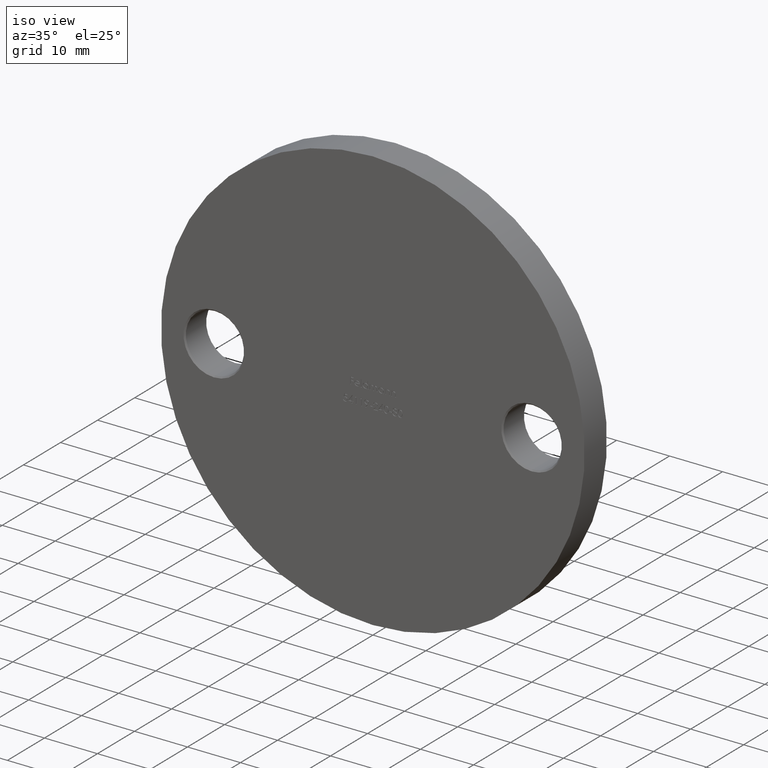
[diagram: clean part render]
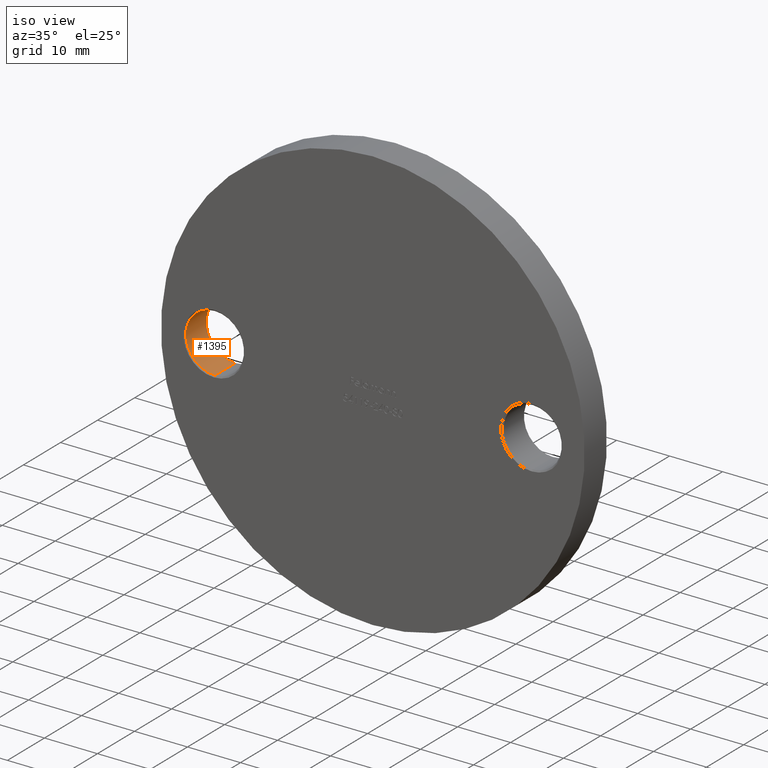
[diagram: same view with one face highlighted and labeled with its STEP entity id]
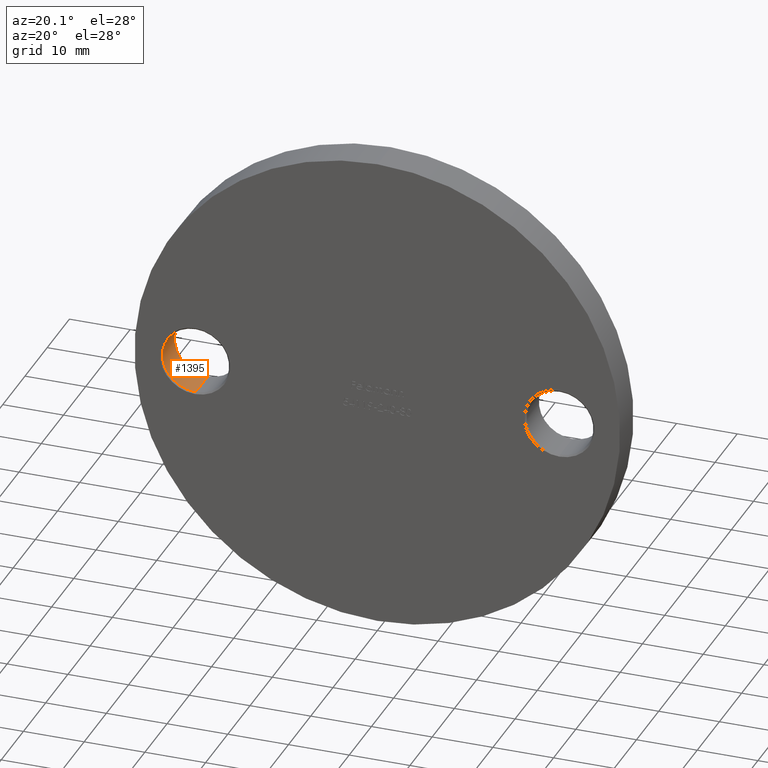
[diagram: same view with one face highlighted and labeled with its STEP entity id]
A machine part, iso view. The second image highlights one B-rep face of the part: STEP entity #1395.
A second angle (auxiliary view) of the same face is appended — the face is thin or edge-on in the first view.
In plain terms, the highlighted cylindrical surface (edge-blend (fillet) strip) has radius 5.5 mm, axis along (-0, -1, -0).
Its self-contained STEP definition (entity closure, byte-faithful):
#74 = DIRECTION ( 'NONE',  ( -0.000000000000000000, -1.000000000000000000, -0.000000000000000000 ) ) ;
#81 = DIRECTION ( 'NONE',  ( 0.000000000000000000, 0.000000000000000000, 1.000000000000000000 ) ) ;
#313 = VERTEX_POINT ( 'NONE', #12658 ) ;
#1125 = CARTESIAN_POINT ( 'NONE',  ( -30.00000000000000000, 5.750000000000000000, 0.000000000000000000 ) ) ;
#1395 = ADVANCED_FACE ( 'NONE', ( #10041 ), #5096, .F. ) ;
#1685 = AXIS2_PLACEMENT_3D ( 'NONE', #10821, #11916, #11960 ) ;
#1877 = CIRCLE ( 'NONE', #8750, 5.499999999999996447 ) ;
#1913 = ORIENTED_EDGE ( 'NONE', *, *, #2502, .T. ) ;
#2502 = EDGE_CURVE ( 'NONE', #9378, #313, #1877, .T. ) ;
#2508 = DIRECTION ( 'NONE',  ( -0.000000000000000000, -1.000000000000000000, -0.000000000000000000 ) ) ;
#3179 = AXIS2_PLACEMENT_3D ( 'NONE', #1125, #8654, #81 ) ;
#3308 = DIRECTION ( 'NONE',  ( -0.000000000000000000, -1.000000000000000000, -0.000000000000000000 ) ) ;
#3365 = ORIENTED_EDGE ( 'NONE', *, *, #12298, .T. ) ;
#3840 = EDGE_LOOP ( 'NONE', ( #3365, #10165, #1913, #7639 ) ) ;
#4364 = VECTOR ( 'NONE', #74, 1000.000000000000000 ) ;
#4428 = CARTESIAN_POINT ( 'NONE',  ( -30.00000000000000000, 5.750000000000000000, -5.499999999999996447 ) ) ;
#4541 = CARTESIAN_POINT ( 'NONE',  ( -30.00000000000000000, 5.750000000000000000, 5.499999999999996447 ) ) ;
#5096 = CYLINDRICAL_SURFACE ( 'NONE', #1685, 5.499999999999996447 ) ;
#5533 = CARTESIAN_POINT ( 'NONE',  ( -30.00000000000000000, 6.000000000000000000, -5.499999999999996447 ) ) ;
#5706 = VECTOR ( 'NONE', #3308, 1000.000000000000000 ) ;
#6528 = CARTESIAN_POINT ( 'NONE',  ( -30.00000000000000000, 6.000000000000000000, 5.499999999999996447 ) ) ;
#7639 = ORIENTED_EDGE ( 'NONE', *, *, #9944, .F. ) ;
#8168 = CARTESIAN_POINT ( 'NONE',  ( -30.00000000000000000, 0.2500000000000036637, 0.000000000000000000 ) ) ;
#8614 = CIRCLE ( 'NONE', #3179, 5.499999999999996447 ) ;
#8654 = DIRECTION ( 'NONE',  ( 0.000000000000000000, 1.000000000000000000, 0.000000000000000000 ) ) ;
#8750 = AXIS2_PLACEMENT_3D ( 'NONE', #8168, #2508, #13532 ) ;
#9378 = VERTEX_POINT ( 'NONE', #11902 ) ;
#9835 = LINE ( 'NONE', #5533, #4364 ) ;
#9944 = EDGE_CURVE ( 'NONE', #13715, #313, #9835, .T. ) ;
#10041 = FACE_OUTER_BOUND ( 'NONE', #3840, .T. ) ;
#10165 = ORIENTED_EDGE ( 'NONE', *, *, #13113, .T. ) ;
#10821 = CARTESIAN_POINT ( 'NONE',  ( -30.00000000000000000, 6.000000000000000000, 0.000000000000000000 ) ) ;
#11902 = CARTESIAN_POINT ( 'NONE',  ( -30.00000000000000000, 0.2500000000000036637, 5.499999999999996447 ) ) ;
#11916 = DIRECTION ( 'NONE',  ( -0.000000000000000000, -1.000000000000000000, -0.000000000000000000 ) ) ;
#11960 = DIRECTION ( 'NONE',  ( 0.000000000000000000, 0.000000000000000000, -1.000000000000000000 ) ) ;
#12298 = EDGE_CURVE ( 'NONE', #13715, #13335, #8614, .T. ) ;
#12658 = CARTESIAN_POINT ( 'NONE',  ( -30.00000000000000000, 0.2500000000000036637, -5.499999999999996447 ) ) ;
#13113 = EDGE_CURVE ( 'NONE', #13335, #9378, #13746, .T. ) ;
#13335 = VERTEX_POINT ( 'NONE', #4541 ) ;
#13532 = DIRECTION ( 'NONE',  ( 0.000000000000000000, 0.000000000000000000, 1.000000000000000000 ) ) ;
#13715 = VERTEX_POINT ( 'NONE', #4428 ) ;
#13746 = LINE ( 'NONE', #6528, #5706 ) ;